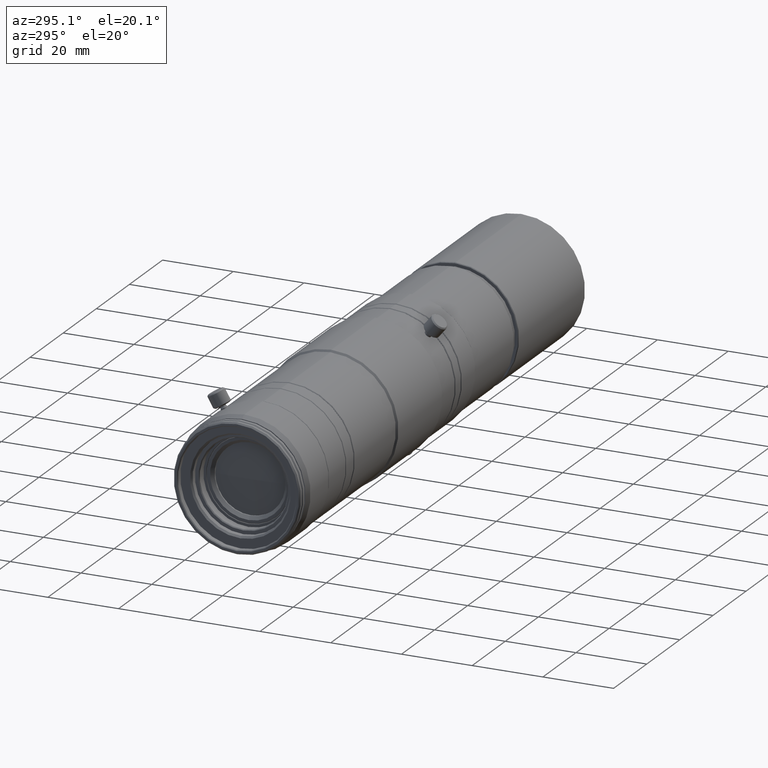
[diagram: clean part render]
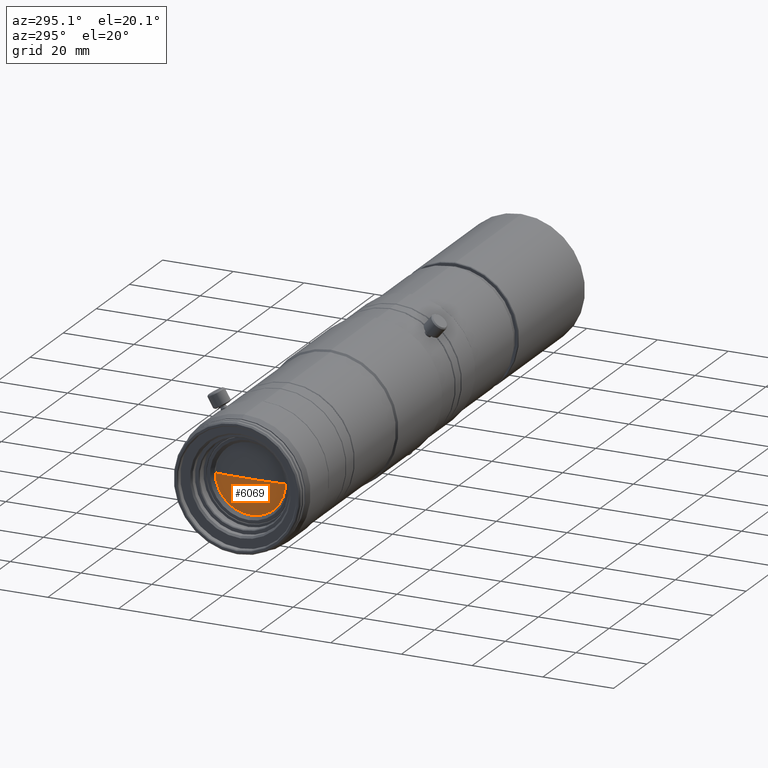
[diagram: same view with one face highlighted and labeled with its STEP entity id]
A machine part, auxiliary view. The second image highlights one B-rep face of the part: STEP entity #6069.
In plain terms, the highlighted spherical surface has radius 131.8 mm.
Its self-contained STEP definition (entity closure, byte-faithful):
#21 = ORIENTED_EDGE ( 'NONE', *, *, #5132, .F. ) ;
#28 = ORIENTED_EDGE ( 'NONE', *, *, #5774, .F. ) ;
#54 = ORIENTED_EDGE ( 'NONE', *, *, #5127, .F. ) ;
#1024 = CIRCLE ( 'NONE', #4129, 10.00000000000003600 ) ;
#1028 = CIRCLE ( 'NONE', #4134, 131.7999999999999800 ) ;
#1033 = CIRCLE ( 'NONE', #4133, 131.7999999999999800 ) ;
#1549 = CARTESIAN_POINT ( 'NONE',  ( -182.9630854481257200, 0.0000000000000000000, 0.0000000000000000000 ) ) ;
#1550 = DIRECTION ( 'NONE',  ( 1.000000000000000000, -0.0000000000000000000, -0.0000000000000000000 ) ) ;
#1551 = DIRECTION ( 'NONE',  ( 0.0000000000000000000, 0.0000000000000000000, -1.000000000000000000 ) ) ;
#1562 = CARTESIAN_POINT ( 'NONE',  ( -51.54299565969196800, -2.149391775674303100E-013, 0.0000000000000000000 ) ) ;
#1563 = DIRECTION ( 'NONE',  ( 0.0000000000000000000, 1.224646799147353200E-016, 1.000000000000000000 ) ) ;
#1564 = DIRECTION ( 'NONE',  ( 0.0000000000000000000, -1.000000000000000000, 1.224646799147353000E-016 ) ) ;
#1567 = CARTESIAN_POINT ( 'NONE',  ( -51.54299565969196800, -2.149391775674303100E-013, 0.0000000000000000000 ) ) ;
#1568 = DIRECTION ( 'NONE',  ( 0.0000000000000000000, 0.0000000000000000000, -1.000000000000000000 ) ) ;
#1569 = DIRECTION ( 'NONE',  ( -1.000000000000000000, 0.0000000000000000000, 0.0000000000000000000 ) ) ;
#2226 = CIRCLE ( 'NONE', #4217, 10.00000000000003600 ) ;
#2571 = SPHERICAL_SURFACE ( 'NONE', #3489, 131.7999999999999800 ) ;
#2576 = FACE_OUTER_BOUND ( 'NONE', #5596, .T. ) ;
#2650 = CARTESIAN_POINT ( 'NONE',  ( -182.9630854481257200, 0.0000000000000000000, 0.0000000000000000000 ) ) ;
#2651 = DIRECTION ( 'NONE',  ( 1.000000000000000000, -0.0000000000000000000, -0.0000000000000000000 ) ) ;
#2652 = DIRECTION ( 'NONE',  ( 0.0000000000000000000, 0.0000000000000000000, -1.000000000000000000 ) ) ;
#3306 = DIRECTION ( 'NONE',  ( 0.0000000000000000000, -0.0000000000000000000, 1.000000000000000000 ) ) ;
#3313 = CARTESIAN_POINT ( 'NONE',  ( -51.54299565969196800, -2.149391775674303100E-013, 0.0000000000000000000 ) ) ;
#3316 = DIRECTION ( 'NONE',  ( 0.0000000000000000000, 1.000000000000000000, 0.0000000000000000000 ) ) ;
#3489 = AXIS2_PLACEMENT_3D ( 'NONE', #3313, #3306, #3316 ) ;
#3609 = VERTEX_POINT ( 'NONE', #4783 ) ;
#3652 = VERTEX_POINT ( 'NONE', #4750 ) ;
#3667 = VERTEX_POINT ( 'NONE', #4738 ) ;
#3725 = VERTEX_POINT ( 'NONE', #4692 ) ;
#3812 = ORIENTED_EDGE ( 'NONE', *, *, #5133, .T. ) ;
#4129 = AXIS2_PLACEMENT_3D ( 'NONE', #1549, #1550, #1551 ) ;
#4133 = AXIS2_PLACEMENT_3D ( 'NONE', #1562, #1563, #1564 ) ;
#4134 = AXIS2_PLACEMENT_3D ( 'NONE', #1567, #1568, #1569 ) ;
#4217 = AXIS2_PLACEMENT_3D ( 'NONE', #2650, #2651, #2652 ) ;
#4692 = CARTESIAN_POINT ( 'NONE',  ( -182.9630854481257200, -10.00000000000019500, 1.224646799147350900E-015 ) ) ;
#4738 = CARTESIAN_POINT ( 'NONE',  ( -182.9630854481257200, 9.999999999999980500, 0.0000000000000000000 ) ) ;
#4750 = CARTESIAN_POINT ( 'NONE',  ( -183.3429956596919500, -2.068687551610492300E-013, 0.0000000000000000000 ) ) ;
#4783 = CARTESIAN_POINT ( 'NONE',  ( -182.9630854481257200, 0.0000000000000000000, -10.00000000000003600 ) ) ;
#5127 = EDGE_CURVE ( 'NONE', #3725, #3609, #1024, .T. ) ;
#5132 = EDGE_CURVE ( 'NONE', #3652, #3725, #1033, .T. ) ;
#5133 = EDGE_CURVE ( 'NONE', #3652, #3667, #1028, .T. ) ;
#5596 = EDGE_LOOP ( 'NONE', ( #21, #3812, #28, #54 ) ) ;
#5774 = EDGE_CURVE ( 'NONE', #3609, #3667, #2226, .T. ) ;
#6069 = ADVANCED_FACE ( 'NONE', ( #2576 ), #2571, .T. ) ;